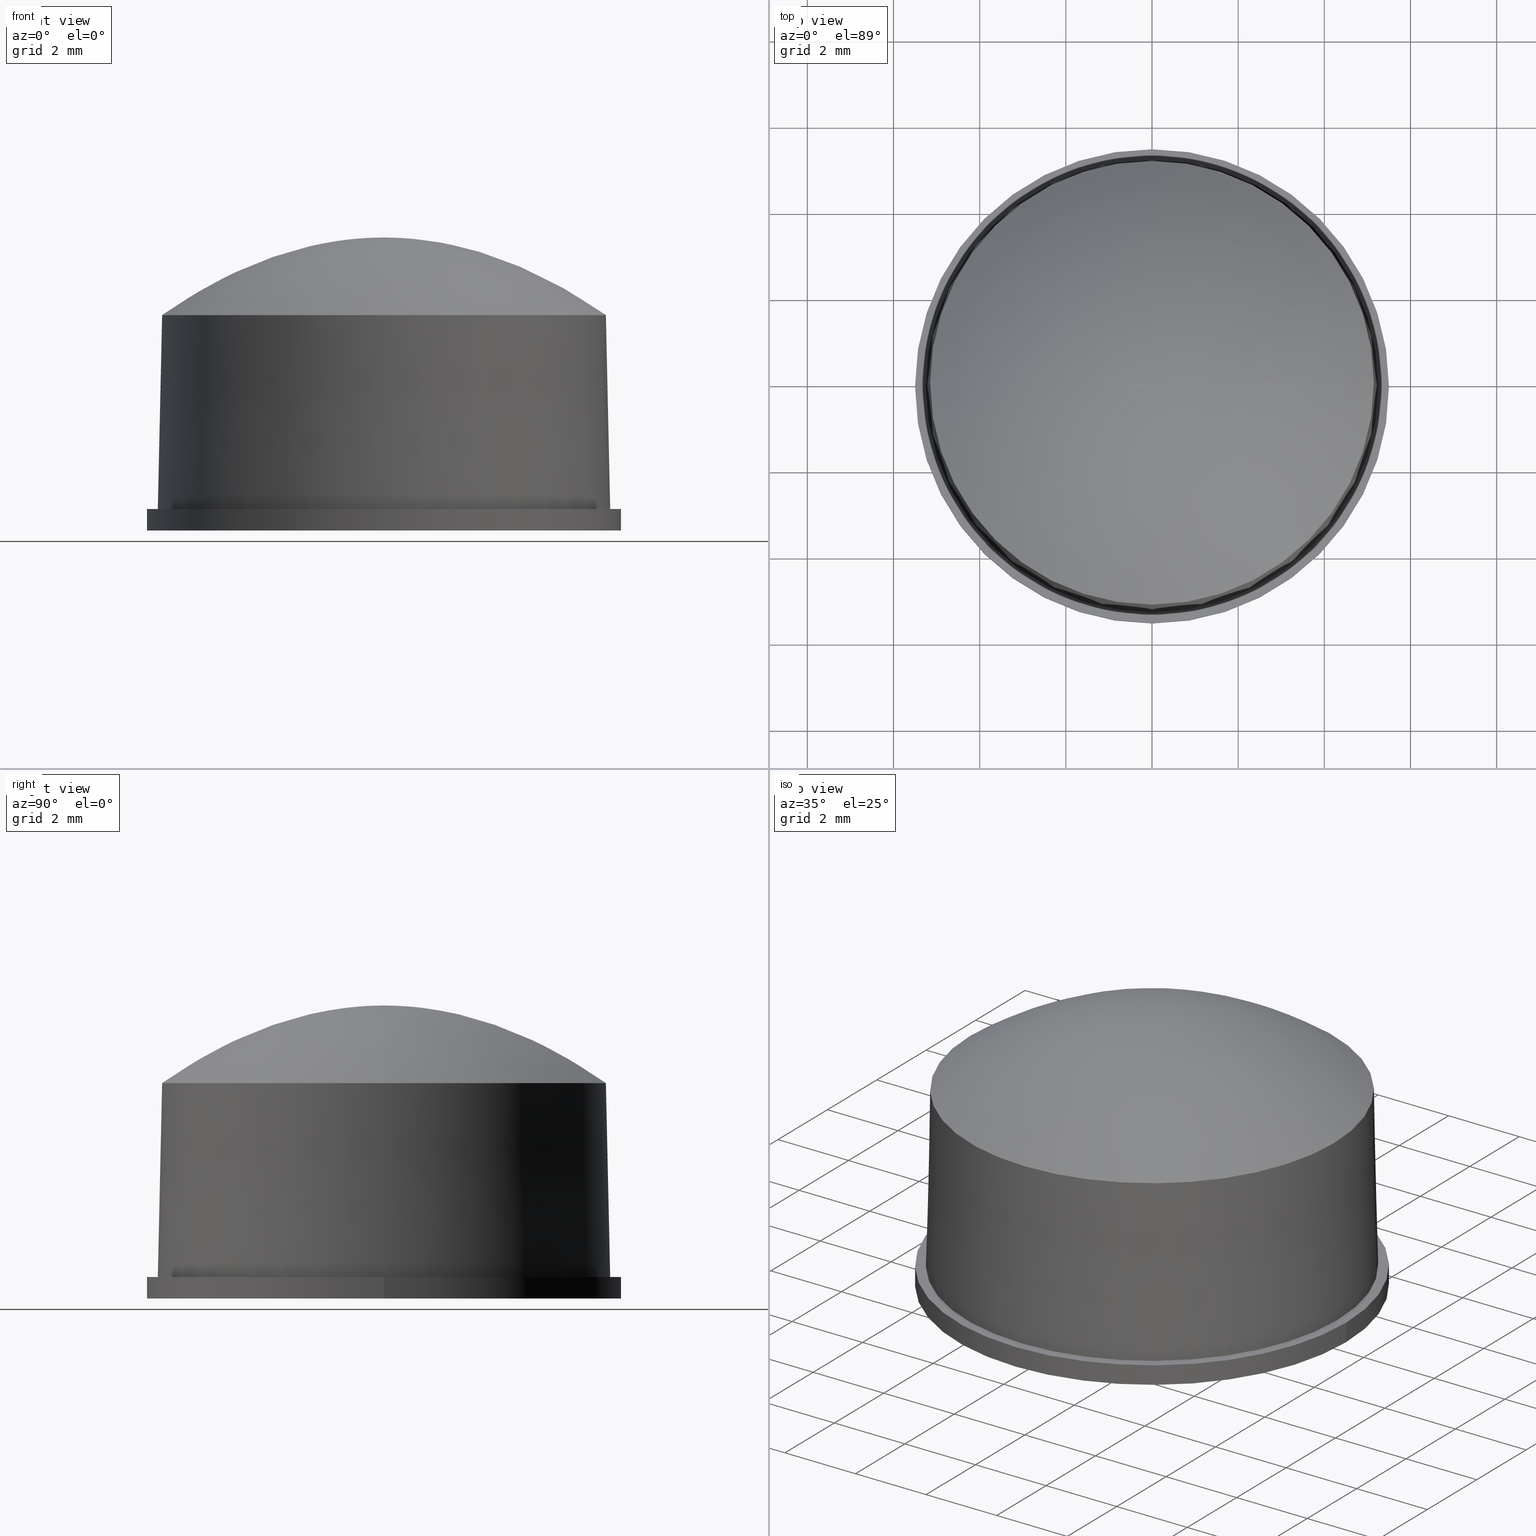
[diagram: canonical four-view strip — front | top / right | iso, engineering-drawing reading convention]
A machine part, canonical four-view strip (front | top / right | iso — engineering-drawing reading convention). The complete STEP part file that produces these views, byte-faithful:
ISO-10303-21;
HEADER;
/* Generated by software containing ST-Developer
 * from STEP Tools, Inc. (www.steptools.com) 
 */

FILE_DESCRIPTION(
/* description */ (''),
/* implementation_level */ '2;1');

FILE_NAME(
/* name */ 
'\\\\SYNOLOGYNAS\\web\\db2\\PR2-11-7T\\\X2\B3C4BA74\X0\\\\X2\BC18C6D0D615
\X0\\\DR_PR2-11-7T.stp',
/* time_stamp */ '2023-01-06T15:49:42+09:00',
/* author */ ('user'),
/* organization */ (''),
/* preprocessor_version */ 'ST-DEVELOPER v15.6',
/* originating_system */ 'Autodesk Inventor 2015',
/* authorisation */ '');

FILE_SCHEMA (('AUTOMOTIVE_DESIGN { 1 0 10303 214 3 1 1 }'));
ENDSEC;

DATA;
#10=MECHANICAL_DESIGN_GEOMETRIC_PRESENTATION_REPRESENTATION('',(#13),#175);
#11=SHAPE_REPRESENTATION_RELATIONSHIP('SRR','None',#184,#12);
#12=ADVANCED_BREP_SHAPE_REPRESENTATION($,(#14),#174);
#13=STYLED_ITEM('',(#193),#14);
#14=MANIFOLD_SOLID_BREP('\X2\C194B9ACB4DC\X0\1',#66);
#15=PLANE('',#74);
#16=PLANE('',#75);
#17=CYLINDRICAL_SURFACE('',#71,5.5);
#18=FACE_BOUND('',#29,.T.);
#19=FACE_BOUND('',#31,.T.);
#20=FACE_BOUND('',#34,.T.);
#21=CONICAL_SURFACE('',#69,5.25,1.27303002005671);
#22=FACE_OUTER_BOUND('',#27,.T.);
#23=FACE_OUTER_BOUND('',#28,.T.);
#24=FACE_OUTER_BOUND('',#30,.T.);
#25=FACE_OUTER_BOUND('',#32,.T.);
#26=FACE_OUTER_BOUND('',#33,.T.);
#27=EDGE_LOOP('',(#50,#51,#52));
#28=EDGE_LOOP('',(#53));
#29=EDGE_LOOP('',(#54));
#30=EDGE_LOOP('',(#55));
#31=EDGE_LOOP('',(#56));
#32=EDGE_LOOP('',(#57));
#33=EDGE_LOOP('',(#58));
#34=EDGE_LOOP('',(#59));
#35=B_SPLINE_CURVE_WITH_KNOTS('',3,(#158,#159,#160,#161),.UNSPECIFIED.,
 .F.,.F.,(4,4),(0.,1.),.UNSPECIFIED.);
#36=CIRCLE('',#68,5.15);
#37=CIRCLE('',#70,5.25);
#38=CIRCLE('',#72,5.5);
#39=CIRCLE('',#73,5.5);
#40=VERTEX_POINT('',#155);
#41=VERTEX_POINT('',#157);
#42=VERTEX_POINT('',#163);
#43=VERTEX_POINT('',#166);
#44=VERTEX_POINT('',#168);
#45=EDGE_CURVE('',#40,#40,#36,.T.);
#46=EDGE_CURVE('',#40,#41,#35,.T.);
#47=EDGE_CURVE('',#42,#42,#37,.T.);
#48=EDGE_CURVE('',#43,#43,#38,.T.);
#49=EDGE_CURVE('',#44,#44,#39,.T.);
#50=ORIENTED_EDGE('',*,*,#45,.F.);
#51=ORIENTED_EDGE('',*,*,#46,.T.);
#52=ORIENTED_EDGE('',*,*,#46,.F.);
#53=ORIENTED_EDGE('',*,*,#47,.F.);
#54=ORIENTED_EDGE('',*,*,#45,.T.);
#55=ORIENTED_EDGE('',*,*,#48,.F.);
#56=ORIENTED_EDGE('',*,*,#49,.F.);
#57=ORIENTED_EDGE('',*,*,#49,.T.);
#58=ORIENTED_EDGE('',*,*,#48,.T.);
#59=ORIENTED_EDGE('',*,*,#47,.T.);
#60=B_SPLINE_SURFACE_WITH_KNOTS('',3,3,((#95,#96,#97,#98),(#99,#100,#101,
#102),(#103,#104,#105,#106),(#107,#108,#109,#110),(#111,#112,#113,#114),
(#115,#116,#117,#118),(#119,#120,#121,#122),(#123,#124,#125,#126),(#127,
#128,#129,#130),(#131,#132,#133,#134),(#135,#136,#137,#138),(#139,#140,
#141,#142),(#143,#144,#145,#146),(#147,#148,#149,#150),(#151,#152,#153,
#154)),.UNSPECIFIED.,.T.,.F.,.F.,(4,1,1,1,1,1,1,1,1,1,1,1,4),(4,4),(-3.72693341517011E-34,
0.0833333333333333,0.166666666666667,0.25,0.333333333333333,0.416666666666667,
0.5,0.583333333333333,0.666666666666667,0.75,0.833333333333333,0.916666666666667,
1.),(0.,1.),.UNSPECIFIED.);
#61=ADVANCED_FACE('',(#22),#60,.F.);
#62=ADVANCED_FACE('',(#23,#18),#21,.T.);
#63=ADVANCED_FACE('',(#24,#19),#17,.T.);
#64=ADVANCED_FACE('',(#25),#15,.F.);
#65=ADVANCED_FACE('',(#26,#20),#16,.T.);
#66=CLOSED_SHELL('',(#61,#62,#63,#64,#65));
#67=AXIS2_PLACEMENT_3D('placement',#94,#76,#77);
#68=AXIS2_PLACEMENT_3D('',#156,#78,#79);
#69=AXIS2_PLACEMENT_3D('',#162,#80,#81);
#70=AXIS2_PLACEMENT_3D('',#164,#82,#83);
#71=AXIS2_PLACEMENT_3D('',#165,#84,#85);
#72=AXIS2_PLACEMENT_3D('',#167,#86,#87);
#73=AXIS2_PLACEMENT_3D('',#169,#88,#89);
#74=AXIS2_PLACEMENT_3D('',#170,#90,#91);
#75=AXIS2_PLACEMENT_3D('',#171,#92,#93);
#76=DIRECTION('axis',(0.,0.,1.));
#77=DIRECTION('refdir',(1.,0.,0.));
#78=DIRECTION('center_axis',(0.,0.,-1.));
#79=DIRECTION('ref_axis',(1.,0.,0.));
#80=DIRECTION('center_axis',(0.,0.,-1.));
#81=DIRECTION('ref_axis',(-1.,0.,0.));
#82=DIRECTION('center_axis',(0.,0.,-1.));
#83=DIRECTION('ref_axis',(-1.,0.,0.));
#84=DIRECTION('center_axis',(0.,0.,1.));
#85=DIRECTION('ref_axis',(-1.,0.,0.));
#86=DIRECTION('center_axis',(0.,0.,1.));
#87=DIRECTION('ref_axis',(-1.,0.,0.));
#88=DIRECTION('center_axis',(0.,0.,-1.));
#89=DIRECTION('ref_axis',(-1.,0.,0.));
#90=DIRECTION('center_axis',(0.,0.,1.));
#91=DIRECTION('ref_axis',(1.,0.,0.));
#92=DIRECTION('center_axis',(0.,0.,1.));
#93=DIRECTION('ref_axis',(1.,0.,0.));
#94=CARTESIAN_POINT('',(0.,0.,0.));
#95=CARTESIAN_POINT('Ctrl Pts',(5.15040181521964,0.000145613301836443,4.99999999999999));
#96=CARTESIAN_POINT('Ctrl Pts',(3.43359061920437,0.000144832285438688,6.19999999999999));
#97=CARTESIAN_POINT('Ctrl Pts',(1.71681119601527,7.81016397488105E-7,6.79999999999998));
#98=CARTESIAN_POINT('Ctrl Pts',(0.,0.,6.79999999999998));
#99=CARTESIAN_POINT('Ctrl Pts',(5.15028899761277,-0.898488395032011,4.99999999999999));
#100=CARTESIAN_POINT('Ctrl Pts',(3.43348130074466,-0.599051352308479,6.19999999999999));
#101=CARTESIAN_POINT('Ctrl Pts',(1.71680769686812,-0.299437042723532,6.79999999999998));
#102=CARTESIAN_POINT('Ctrl Pts',(0.,0.,6.79999999999998));
#103=CARTESIAN_POINT('Ctrl Pts',(4.66874405699508,-2.69537582806774,5.));
#104=CARTESIAN_POINT('Ctrl Pts',(3.11284641304663,-1.79705917914616,6.2));
#105=CARTESIAN_POINT('Ctrl Pts',(1.55589764394845,-0.898316648921577,6.8));
#106=CARTESIAN_POINT('Ctrl Pts',(0.,0.,6.8));
#107=CARTESIAN_POINT('Ctrl Pts',(2.69631601348809,-4.66951214255054,5.));
#108=CARTESIAN_POINT('Ctrl Pts',(1.79803894459269,-3.11365759831129,6.19999999999999));
#109=CARTESIAN_POINT('Ctrl Pts',(0.898277068895401,-1.55585454423925,6.8));
#110=CARTESIAN_POINT('Ctrl Pts',(0.,0.,6.8));
#111=CARTESIAN_POINT('Ctrl Pts',(-1.51093336659817E-5,-5.39112544377237,
5.));
#112=CARTESIAN_POINT('Ctrl Pts',(-3.48598508502462E-5,-3.59370579901659,
6.2));
#113=CARTESIAN_POINT('Ctrl Pts',(1.9750517184039E-5,-1.79741964475578,6.8));
#114=CARTESIAN_POINT('Ctrl Pts',(0.,0.,6.8));
#115=CARTESIAN_POINT('Ctrl Pts',(-2.69527656268872,-4.66870338632626,5.));
#116=CARTESIAN_POINT('Ctrl Pts',(-1.79695401421813,-3.11286136392033,6.2));
#117=CARTESIAN_POINT('Ctrl Pts',(-0.898322548470591,-1.55584202240594,6.8));
#118=CARTESIAN_POINT('Ctrl Pts',(0.,0.,6.8));
#119=CARTESIAN_POINT('Ctrl Pts',(-4.66963555589485,-2.69620029398333,5.));
#120=CARTESIAN_POINT('Ctrl Pts',(-3.11378186353498,-1.79789090003082,6.2));
#121=CARTESIAN_POINT('Ctrl Pts',(-1.55585369235987,-0.898309393952517,6.8));
#122=CARTESIAN_POINT('Ctrl Pts',(0.,0.,6.8));
#123=CARTESIAN_POINT('Ctrl Pts',(-5.39119513707094,-2.6554029950371E-5,
5.));
#124=CARTESIAN_POINT('Ctrl Pts',(-3.59378069890492,-2.52156309777352E-5,
6.2));
#125=CARTESIAN_POINT('Ctrl Pts',(-1.79741443816602,-1.33839897320298E-6,
6.8));
#126=CARTESIAN_POINT('Ctrl Pts',(0.,0.,6.8));
#127=CARTESIAN_POINT('Ctrl Pts',(-4.66964716203797,2.69619449435209,5.));
#128=CARTESIAN_POINT('Ctrl Pts',(-3.1137923511106,1.79788195013252,6.2));
#129=CARTESIAN_POINT('Ctrl Pts',(-1.55585481092736,0.898312544219574,6.8));
#130=CARTESIAN_POINT('Ctrl Pts',(0.,0.,6.8));
#131=CARTESIAN_POINT('Ctrl Pts',(-2.69540676870403,4.66856012431537,5.));
#132=CARTESIAN_POINT('Ctrl Pts',(-1.79708644379574,3.11272234226553,6.2));
#133=CARTESIAN_POINT('Ctrl Pts',(-0.898320324908295,1.55583778204984,6.8));
#134=CARTESIAN_POINT('Ctrl Pts',(0.,0.,6.8));
#135=CARTESIAN_POINT('Ctrl Pts',(-5.45748212395053E-5,5.39111992780641,
5.));
#136=CARTESIAN_POINT('Ctrl Pts',(-6.93420634777171E-5,3.59369163720219,
6.2));
#137=CARTESIAN_POINT('Ctrl Pts',(1.47672422388758E-5,1.79742829060422,6.8));
#138=CARTESIAN_POINT('Ctrl Pts',(0.,0.,6.8));
#139=CARTESIAN_POINT('Ctrl Pts',(2.6953879740859,4.66856105700757,5.));
#140=CARTESIAN_POINT('Ctrl Pts',(1.79710395610455,3.11272226797921,6.2));
#141=CARTESIAN_POINT('Ctrl Pts',(0.898284017981351,1.55583878902837,6.8));
#142=CARTESIAN_POINT('Ctrl Pts',(0.,0.,6.8));
#143=CARTESIAN_POINT('Ctrl Pts',(4.6694209626363,2.69642822193535,4.99999999999999));
#144=CARTESIAN_POINT('Ctrl Pts',(3.1135023238049,1.79811792841735,6.2));
#145=CARTESIAN_POINT('Ctrl Pts',(1.5559186388314,0.898310293517999,6.79999999999999));
#146=CARTESIAN_POINT('Ctrl Pts',(0.,0.,6.79999999999999));
#147=CARTESIAN_POINT('Ctrl Pts',(5.15051463282651,0.898779621635684,4.99999999999999));
#148=CARTESIAN_POINT('Ctrl Pts',(3.43369993766408,0.599341016879357,6.19999999999998));
#149=CARTESIAN_POINT('Ctrl Pts',(1.71681469516243,0.299438604756327,6.79999999999998));
#150=CARTESIAN_POINT('Ctrl Pts',(0.,0.,6.79999999999998));
#151=CARTESIAN_POINT('Ctrl Pts',(5.15040181521964,0.000145613301836443,
4.99999999999999));
#152=CARTESIAN_POINT('Ctrl Pts',(3.43359061920437,0.000144832285438688,
6.19999999999999));
#153=CARTESIAN_POINT('Ctrl Pts',(1.71681119601527,7.81016397488105E-7,6.79999999999998));
#154=CARTESIAN_POINT('Ctrl Pts',(0.,0.,6.79999999999998));
#155=CARTESIAN_POINT('',(5.15,0.,5.));
#156=CARTESIAN_POINT('Origin',(0.,0.,5.));
#157=CARTESIAN_POINT('',(0.,0.,6.8));
#158=CARTESIAN_POINT('Ctrl Pts',(5.15,0.,5.));
#159=CARTESIAN_POINT('Ctrl Pts',(3.43333333333333,3.60579488169763E-16,
6.2));
#160=CARTESIAN_POINT('Ctrl Pts',(1.71666666666667,3.60579488169763E-16,
6.8));
#161=CARTESIAN_POINT('Ctrl Pts',(0.,0.,6.8));
#162=CARTESIAN_POINT('Origin',(0.,0.,0.5));
#163=CARTESIAN_POINT('',(-5.25,0.,0.5));
#164=CARTESIAN_POINT('Origin',(0.,0.,0.5));
#165=CARTESIAN_POINT('Origin',(0.,0.,0.));
#166=CARTESIAN_POINT('',(5.5,6.73555739531044E-16,0.5));
#167=CARTESIAN_POINT('Origin',(0.,0.,0.5));
#168=CARTESIAN_POINT('',(5.5,6.73555739531044E-16,0.));
#169=CARTESIAN_POINT('Origin',(0.,0.,0.));
#170=CARTESIAN_POINT('Origin',(-2.24345254752611E-16,8.41078048958452E-17,
0.));
#171=CARTESIAN_POINT('Origin',(-2.24345254752611E-16,8.41078048958452E-17,
0.5));
#172=UNCERTAINTY_MEASURE_WITH_UNIT(LENGTH_MEASURE(0.01),#176,
'DISTANCE_ACCURACY_VALUE',
'Maximum model space distance between geometric entities at asserted c
onnectivities');
#173=UNCERTAINTY_MEASURE_WITH_UNIT(LENGTH_MEASURE(1.E-6),#176,
'DISTANCE_ACCURACY_VALUE',
'Maximum model space distance between geometric entities at asserted c
onnectivities');
#174=(
GEOMETRIC_REPRESENTATION_CONTEXT(3)
GLOBAL_UNCERTAINTY_ASSIGNED_CONTEXT((#172))
GLOBAL_UNIT_ASSIGNED_CONTEXT((#176,#179,#177))
REPRESENTATION_CONTEXT('','3D')
);
#175=(
GEOMETRIC_REPRESENTATION_CONTEXT(3)
GLOBAL_UNCERTAINTY_ASSIGNED_CONTEXT((#173))
GLOBAL_UNIT_ASSIGNED_CONTEXT((#176,#179,#177))
REPRESENTATION_CONTEXT('','3D')
);
#176=(
LENGTH_UNIT()
NAMED_UNIT(*)
SI_UNIT(.MILLI.,.METRE.)
);
#177=(
NAMED_UNIT(*)
SI_UNIT($,.STERADIAN.)
SOLID_ANGLE_UNIT()
);
#178=DIMENSIONAL_EXPONENTS(0.,0.,0.,0.,0.,0.,0.);
#179=(
CONVERSION_BASED_UNIT('degree',#181)
NAMED_UNIT(#178)
PLANE_ANGLE_UNIT()
);
#180=(
NAMED_UNIT(*)
PLANE_ANGLE_UNIT()
SI_UNIT($,.RADIAN.)
);
#181=PLANE_ANGLE_MEASURE_WITH_UNIT(PLANE_ANGLE_MEASURE(0.01745329252),#180);
#182=SHAPE_DEFINITION_REPRESENTATION(#183,#184);
#183=PRODUCT_DEFINITION_SHAPE('',$,#186);
#184=SHAPE_REPRESENTATION('',(#67),#174);
#185=PRODUCT_DEFINITION_CONTEXT('part definition',#190,'design');
#186=PRODUCT_DEFINITION('DR_PR2-11-7T','DR_PR2-11-7T',#187,#185);
#187=PRODUCT_DEFINITION_FORMATION('',$,#192);
#188=PRODUCT_RELATED_PRODUCT_CATEGORY('DR_PR2-11-7T','DR_PR2-11-7T',(#192));
#189=APPLICATION_PROTOCOL_DEFINITION('international standard',
'automotive_design',2009,#190);
#190=APPLICATION_CONTEXT(
'Core Data for Automotive Mechanical Design Process');
#191=PRODUCT_CONTEXT('part definition',#190,'mechanical');
#192=PRODUCT('DR_PR2-11-7T','DR_PR2-11-7T',$,(#191));
#193=PRESENTATION_STYLE_ASSIGNMENT((#194));
#194=SURFACE_STYLE_USAGE(.BOTH.,#195);
#195=SURFACE_SIDE_STYLE($,(#196));
#196=SURFACE_STYLE_FILL_AREA(#197);
#197=FILL_AREA_STYLE($,(#198));
#198=FILL_AREA_STYLE_COLOUR($,#199);
#199=COLOUR_RGB('',1.,1.,1.);
ENDSEC;
END-ISO-10303-21;
